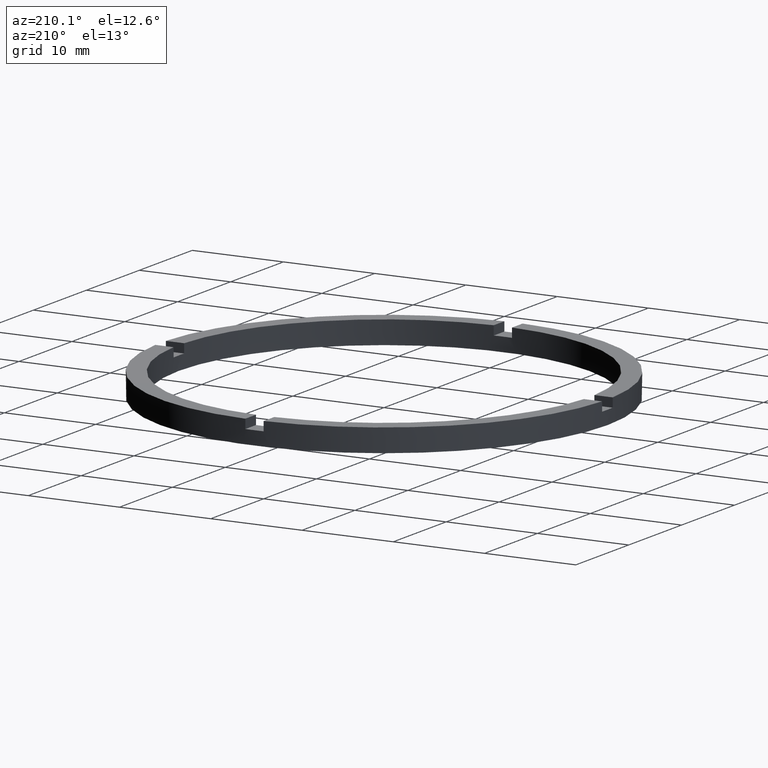
[diagram: clean part render]
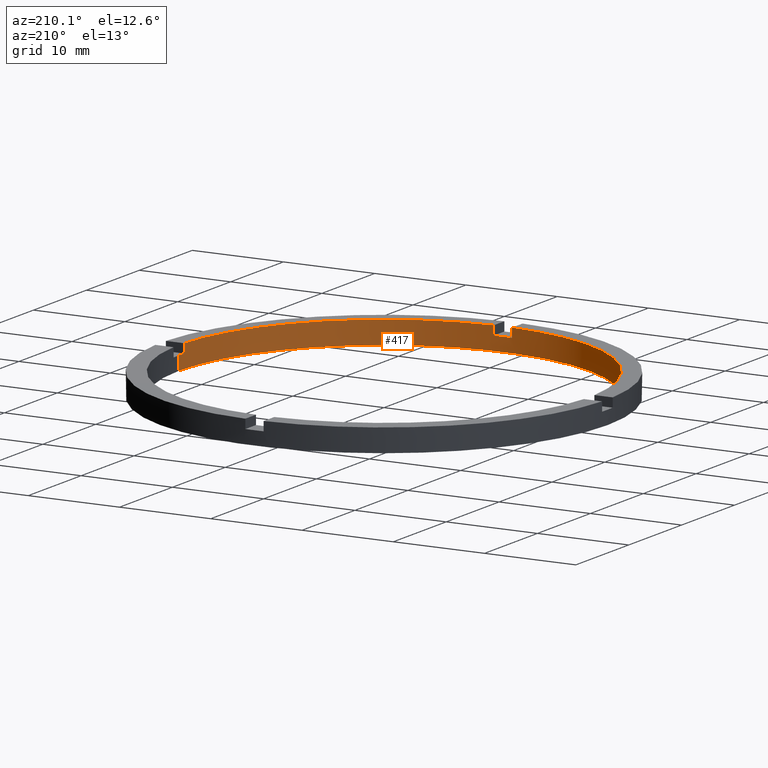
[diagram: same view with one face highlighted and labeled with its STEP entity id]
A machine part, auxiliary view. The second image highlights one B-rep face of the part: STEP entity #417.
In plain terms, the highlighted cylindrical surface (partial cylindrical patch) has radius 22.5 mm, axis along (-0, -0, -1).
Its self-contained STEP definition (entity closure, byte-faithful):
#7 = CARTESIAN_POINT ( 'NONE',  ( -22.47776679298902636, -1.000000000000025313, 2.500000000000000000 ) ) ;
#11 = VECTOR ( 'NONE', #710, 1000.000000000000000 ) ;
#24 = CARTESIAN_POINT ( 'NONE',  ( -22.50000000000000355, 0.000000000000000000, 2.500000000000000000 ) ) ;
#52 = DIRECTION ( 'NONE',  ( 1.000000000000000000, 0.000000000000000000, 0.000000000000000000 ) ) ;
#59 = EDGE_CURVE ( 'NONE', #300, #448, #548, .T. ) ;
#65 = AXIS2_PLACEMENT_3D ( 'NONE', #441, #484, #576 ) ;
#72 = VERTEX_POINT ( 'NONE', #655 ) ;
#73 = CIRCLE ( 'NONE', #700, 22.50000000000000355 ) ;
#74 = ORIENTED_EDGE ( 'NONE', *, *, #780, .T. ) ;
#75 = VECTOR ( 'NONE', #636, 1000.000000000000000 ) ;
#91 = CIRCLE ( 'NONE', #755, 22.50000000000000355 ) ;
#98 = CARTESIAN_POINT ( 'NONE',  ( 0.9999999999998389066, -22.47776679298903346, 2.500000000000000000 ) ) ;
#102 = EDGE_CURVE ( 'NONE', #300, #560, #545, .T. ) ;
#107 = VERTEX_POINT ( 'NONE', #646 ) ;
#128 = DIRECTION ( 'NONE',  ( -0.000000000000000000, 0.000000000000000000, 1.000000000000000000 ) ) ;
#133 = EDGE_CURVE ( 'NONE', #72, #107, #569, .T. ) ;
#136 = DIRECTION ( 'NONE',  ( 1.000000000000000000, 0.000000000000000000, 0.000000000000000000 ) ) ;
#156 = DIRECTION ( 'NONE',  ( 1.000000000000000000, 0.000000000000000000, 0.000000000000000000 ) ) ;
#174 = DIRECTION ( 'NONE',  ( -0.000000000000000000, -0.000000000000000000, -1.000000000000000000 ) ) ;
#180 = CARTESIAN_POINT ( 'NONE',  ( 0.9999999999998389066, -22.47776679298903346, 2.500000000000000000 ) ) ;
#196 = CARTESIAN_POINT ( 'NONE',  ( 22.50000000000000355, 2.755455298081545172E-15, 0.000000000000000000 ) ) ;
#197 = DIRECTION ( 'NONE',  ( -0.000000000000000000, -0.000000000000000000, -1.000000000000000000 ) ) ;
#208 = EDGE_CURVE ( 'NONE', #230, #529, #265, .T. ) ;
#211 = CARTESIAN_POINT ( 'NONE',  ( -1.000000000000161204, -22.47776679298901925, 2.500000000000000000 ) ) ;
#215 = DIRECTION ( 'NONE',  ( -1.000000000000000000, 0.000000000000000000, 0.000000000000000000 ) ) ;
#216 = CARTESIAN_POINT ( 'NONE',  ( 22.47776679298901925, -1.000000000000157874, 1.500000000000000000 ) ) ;
#225 = CARTESIAN_POINT ( 'NONE',  ( -22.50000000000000355, 0.000000000000000000, 0.000000000000000000 ) ) ;
#230 = VERTEX_POINT ( 'NONE', #412 ) ;
#244 = CARTESIAN_POINT ( 'NONE',  ( 22.47776679298901925, -1.000000000000157874, 2.500000000000000000 ) ) ;
#245 = CARTESIAN_POINT ( 'NONE',  ( 0.000000000000000000, 0.000000000000000000, 2.500000000000000000 ) ) ;
#252 = CARTESIAN_POINT ( 'NONE',  ( 22.50000000000000355, 2.755455298081545172E-15, 1.500000000000000000 ) ) ;
#256 = DIRECTION ( 'NONE',  ( 0.000000000000000000, 0.000000000000000000, 1.000000000000000000 ) ) ;
#265 = LINE ( 'NONE', #24, #542 ) ;
#277 = VECTOR ( 'NONE', #652, 1000.000000000000000 ) ;
#282 = ORIENTED_EDGE ( 'NONE', *, *, #301, .F. ) ;
#285 = EDGE_LOOP ( 'NONE', ( #689, #74, #694, #347, #351, #372, #434, #282, #543, #584, #551, #681 ) ) ;
#297 = DIRECTION ( 'NONE',  ( 1.000000000000000000, 0.000000000000000000, 0.000000000000000000 ) ) ;
#300 = VERTEX_POINT ( 'NONE', #216 ) ;
#301 = EDGE_CURVE ( 'NONE', #507, #107, #311, .T. ) ;
#306 = DIRECTION ( 'NONE',  ( 0.000000000000000000, 0.000000000000000000, 1.000000000000000000 ) ) ;
#311 = LINE ( 'NONE', #211, #11 ) ;
#321 = FACE_OUTER_BOUND ( 'NONE', #285, .T. ) ;
#330 = DIRECTION ( 'NONE',  ( 1.000000000000000000, 0.000000000000000000, 0.000000000000000000 ) ) ;
#341 = DIRECTION ( 'NONE',  ( 0.000000000000000000, 0.000000000000000000, 1.000000000000000000 ) ) ;
#347 = ORIENTED_EDGE ( 'NONE', *, *, #208, .F. ) ;
#351 = ORIENTED_EDGE ( 'NONE', *, *, #513, .T. ) ;
#355 = EDGE_CURVE ( 'NONE', #507, #373, #605, .T. ) ;
#372 = ORIENTED_EDGE ( 'NONE', *, *, #764, .F. ) ;
#373 = VERTEX_POINT ( 'NONE', #472 ) ;
#375 = DIRECTION ( 'NONE',  ( -0.000000000000000000, -0.000000000000000000, -1.000000000000000000 ) ) ;
#380 = EDGE_CURVE ( 'NONE', #504, #373, #603, .T. ) ;
#382 = AXIS2_PLACEMENT_3D ( 'NONE', #758, #256, #156 ) ;
#403 = EDGE_CURVE ( 'NONE', #529, #500, #73, .T. ) ;
#412 = CARTESIAN_POINT ( 'NONE',  ( -22.50000000000000355, 0.000000000000000000, 1.500000000000000000 ) ) ;
#415 = CARTESIAN_POINT ( 'NONE',  ( 0.000000000000000000, 0.000000000000000000, 0.000000000000000000 ) ) ;
#417 = ADVANCED_FACE ( 'NONE', ( #321 ), #589, .F. ) ;
#427 = CARTESIAN_POINT ( 'NONE',  ( -22.47776679298902636, -1.000000000000025313, 1.500000000000000000 ) ) ;
#434 = ORIENTED_EDGE ( 'NONE', *, *, #133, .T. ) ;
#441 = CARTESIAN_POINT ( 'NONE',  ( 0.000000000000000000, 0.000000000000000000, 1.500000000000000000 ) ) ;
#448 = VERTEX_POINT ( 'NONE', #618 ) ;
#470 = EDGE_CURVE ( 'NONE', #504, #448, #91, .T. ) ;
#472 = CARTESIAN_POINT ( 'NONE',  ( 0.9999999999998389066, -22.47776679298903346, 1.500000000000000000 ) ) ;
#484 = DIRECTION ( 'NONE',  ( 0.000000000000000000, 0.000000000000000000, 1.000000000000000000 ) ) ;
#493 = CARTESIAN_POINT ( 'NONE',  ( -1.000000000000161204, -22.47776679298901925, 1.500000000000000000 ) ) ;
#497 = LINE ( 'NONE', #7, #767 ) ;
#500 = VERTEX_POINT ( 'NONE', #196 ) ;
#503 = DIRECTION ( 'NONE',  ( -0.000000000000000000, -0.000000000000000000, -1.000000000000000000 ) ) ;
#504 = VERTEX_POINT ( 'NONE', #98 ) ;
#507 = VERTEX_POINT ( 'NONE', #493 ) ;
#508 = LINE ( 'NONE', #673, #777 ) ;
#513 = EDGE_CURVE ( 'NONE', #230, #598, #624, .T. ) ;
#529 = VERTEX_POINT ( 'NONE', #225 ) ;
#542 = VECTOR ( 'NONE', #375, 1000.000000000000000 ) ;
#543 = ORIENTED_EDGE ( 'NONE', *, *, #355, .T. ) ;
#545 = CIRCLE ( 'NONE', #685, 22.50000000000000355 ) ;
#548 = LINE ( 'NONE', #244, #277 ) ;
#551 = ORIENTED_EDGE ( 'NONE', *, *, #470, .T. ) ;
#560 = VERTEX_POINT ( 'NONE', #252 ) ;
#569 = CIRCLE ( 'NONE', #382, 22.50000000000000355 ) ;
#574 = AXIS2_PLACEMENT_3D ( 'NONE', #752, #128, #136 ) ;
#576 = DIRECTION ( 'NONE',  ( 1.000000000000000000, 0.000000000000000000, 0.000000000000000000 ) ) ;
#578 = CARTESIAN_POINT ( 'NONE',  ( 0.000000000000000000, 0.000000000000000000, 1.500000000000000000 ) ) ;
#584 = ORIENTED_EDGE ( 'NONE', *, *, #380, .F. ) ;
#589 = CYLINDRICAL_SURFACE ( 'NONE', #668, 22.50000000000000355 ) ;
#598 = VERTEX_POINT ( 'NONE', #427 ) ;
#603 = LINE ( 'NONE', #180, #75 ) ;
#605 = CIRCLE ( 'NONE', #574, 22.50000000000000355 ) ;
#618 = CARTESIAN_POINT ( 'NONE',  ( 22.47776679298901925, -1.000000000000157874, 2.500000000000000000 ) ) ;
#624 = CIRCLE ( 'NONE', #65, 22.50000000000000355 ) ;
#636 = DIRECTION ( 'NONE',  ( -0.000000000000000000, -0.000000000000000000, -1.000000000000000000 ) ) ;
#646 = CARTESIAN_POINT ( 'NONE',  ( -1.000000000000161204, -22.47776679298901925, 2.500000000000000000 ) ) ;
#652 = DIRECTION ( 'NONE',  ( 0.000000000000000000, 0.000000000000000000, 1.000000000000000000 ) ) ;
#655 = CARTESIAN_POINT ( 'NONE',  ( -22.47776679298902636, -1.000000000000025313, 2.500000000000000000 ) ) ;
#668 = AXIS2_PLACEMENT_3D ( 'NONE', #770, #174, #215 ) ;
#673 = CARTESIAN_POINT ( 'NONE',  ( 22.50000000000000355, 2.755455298081545172E-15, 2.500000000000000000 ) ) ;
#678 = DIRECTION ( 'NONE',  ( 0.000000000000000000, 0.000000000000000000, 1.000000000000000000 ) ) ;
#681 = ORIENTED_EDGE ( 'NONE', *, *, #59, .F. ) ;
#685 = AXIS2_PLACEMENT_3D ( 'NONE', #578, #341, #52 ) ;
#689 = ORIENTED_EDGE ( 'NONE', *, *, #102, .T. ) ;
#694 = ORIENTED_EDGE ( 'NONE', *, *, #403, .F. ) ;
#700 = AXIS2_PLACEMENT_3D ( 'NONE', #415, #306, #297 ) ;
#710 = DIRECTION ( 'NONE',  ( 0.000000000000000000, 0.000000000000000000, 1.000000000000000000 ) ) ;
#752 = CARTESIAN_POINT ( 'NONE',  ( 0.000000000000000000, 0.000000000000000000, 1.500000000000000000 ) ) ;
#755 = AXIS2_PLACEMENT_3D ( 'NONE', #245, #678, #330 ) ;
#758 = CARTESIAN_POINT ( 'NONE',  ( 0.000000000000000000, 0.000000000000000000, 2.500000000000000000 ) ) ;
#764 = EDGE_CURVE ( 'NONE', #72, #598, #497, .T. ) ;
#767 = VECTOR ( 'NONE', #503, 1000.000000000000000 ) ;
#770 = CARTESIAN_POINT ( 'NONE',  ( 0.000000000000000000, 0.000000000000000000, 2.500000000000000000 ) ) ;
#777 = VECTOR ( 'NONE', #197, 1000.000000000000000 ) ;
#780 = EDGE_CURVE ( 'NONE', #560, #500, #508, .T. ) ;